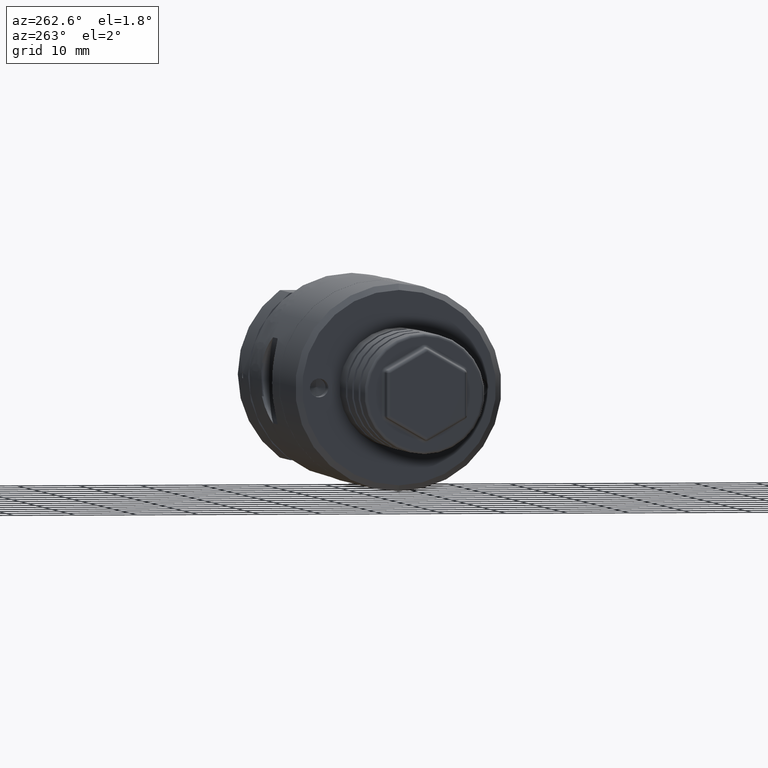
[diagram: clean part render]
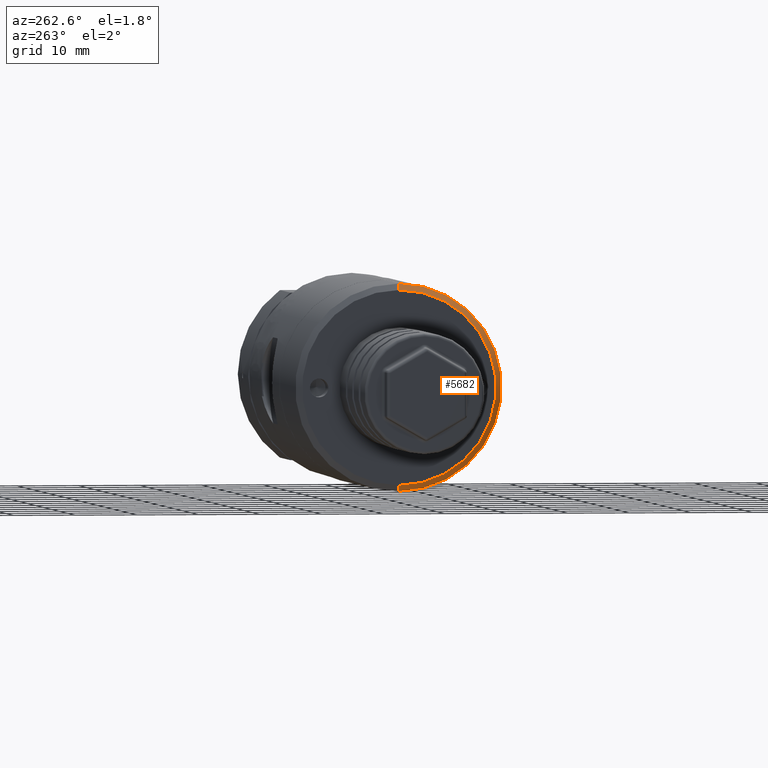
[diagram: same view with one face highlighted and labeled with its STEP entity id]
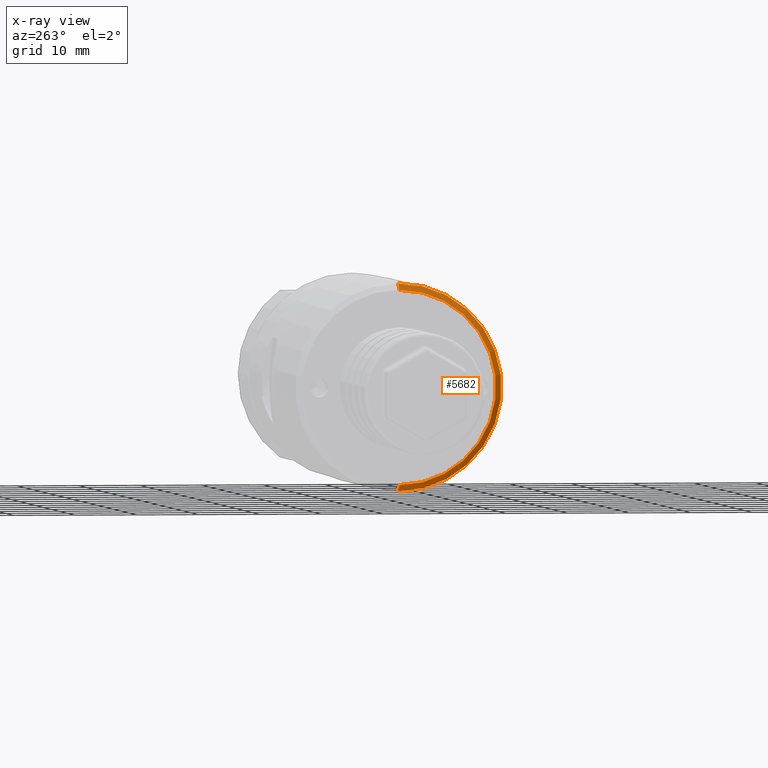
[diagram: x-ray of the same camera — body ghosted, the highlighted face saturated]
A machine part, auxiliary view. The second image highlights one B-rep face of the part: STEP entity #5682.
The next image is the same camera in x-ray: the body ghosted, the highlighted face saturated — about 0% of this face is hidden behind the body in this view.
In plain terms, the highlighted conical surface has half-angle 45 deg.
Its self-contained STEP definition (entity closure, byte-faithful):
#81 = CARTESIAN_POINT ( 'NONE',  ( -71.90000000000000600, 2.051283388571816900E-015, 16.75000000000000000 ) ) ;
#462 = CARTESIAN_POINT ( 'NONE',  ( -71.90000000000000600, 0.0000000000000000000, 0.0000000000000000000 ) ) ;
#465 = DIRECTION ( 'NONE',  ( 0.0000000000000000000, 0.0000000000000000000, 1.000000000000000000 ) ) ;
#1841 = DIRECTION ( 'NONE',  ( 0.0000000000000000000, 0.0000000000000000000, -1.000000000000000000 ) ) ;
#1908 = CIRCLE ( 'NONE', #3865, 16.75000000000000000 ) ;
#2098 = ORIENTED_EDGE ( 'NONE', *, *, #15212, .T. ) ;
#2987 = EDGE_CURVE ( 'NONE', #9351, #15056, #1908, .T. ) ;
#3081 = CARTESIAN_POINT ( 'NONE',  ( -71.90000000000000600, 2.051283388571816900E-015, 16.75000000000000000 ) ) ;
#3269 = DIRECTION ( 'NONE',  ( 1.000000000000000000, 0.0000000000000000000, 0.0000000000000000000 ) ) ;
#3453 = CARTESIAN_POINT ( 'NONE',  ( -71.90000000000000600, 0.0000000000000000000, 0.0000000000000000000 ) ) ;
#3865 = AXIS2_PLACEMENT_3D ( 'NONE', #3453, #9238, #465 ) ;
#4816 = ORIENTED_EDGE ( 'NONE', *, *, #2987, .F. ) ;
#5170 = CARTESIAN_POINT ( 'NONE',  ( -72.90000000000000600, 0.0000000000000000000, -15.75000000000000000 ) ) ;
#5682 = ADVANCED_FACE ( 'NONE', ( #10970 ), #9604, .T. ) ;
#6614 = VECTOR ( 'NONE', #7644, 999.9999999999998900 ) ;
#6795 = AXIS2_PLACEMENT_3D ( 'NONE', #462, #3269, #1841 ) ;
#7644 = DIRECTION ( 'NONE',  ( 0.7071067811865520100, 0.0000000000000000000, -0.7071067811865431300 ) ) ;
#8097 = VERTEX_POINT ( 'NONE', #5170 ) ;
#8947 = DIRECTION ( 'NONE',  ( 0.0000000000000000000, 0.0000000000000000000, 1.000000000000000000 ) ) ;
#9238 = DIRECTION ( 'NONE',  ( 1.000000000000000000, -0.0000000000000000000, -0.0000000000000000000 ) ) ;
#9351 = VERTEX_POINT ( 'NONE', #3081 ) ;
#9604 = CONICAL_SURFACE ( 'NONE', #6795, 16.75000000000000000, 0.7853981633974419500 ) ;
#9969 = ORIENTED_EDGE ( 'NONE', *, *, #13575, .F. ) ;
#10970 = FACE_OUTER_BOUND ( 'NONE', #14875, .T. ) ;
#11421 = CARTESIAN_POINT ( 'NONE',  ( -71.90000000000000600, 0.0000000000000000000, -16.75000000000000000 ) ) ;
#11635 = DIRECTION ( 'NONE',  ( 0.7071067811865520100, 8.659560562354878600E-017, 0.7071067811865431300 ) ) ;
#11864 = LINE ( 'NONE', #81, #13920 ) ;
#12033 = CARTESIAN_POINT ( 'NONE',  ( -72.90000000000000600, 0.0000000000000000000, 0.0000000000000000000 ) ) ;
#12118 = VERTEX_POINT ( 'NONE', #17607 ) ;
#12518 = LINE ( 'NONE', #17987, #6614 ) ;
#13575 = EDGE_CURVE ( 'NONE', #12118, #9351, #11864, .T. ) ;
#13920 = VECTOR ( 'NONE', #11635, 999.9999999999998900 ) ;
#14154 = EDGE_CURVE ( 'NONE', #8097, #12118, #16649, .T. ) ;
#14875 = EDGE_LOOP ( 'NONE', ( #9969, #17747, #2098, #4816 ) ) ;
#15056 = VERTEX_POINT ( 'NONE', #11421 ) ;
#15212 = EDGE_CURVE ( 'NONE', #8097, #15056, #12518, .T. ) ;
#16649 = CIRCLE ( 'NONE', #18164, 15.75000000000000000 ) ;
#17607 = CARTESIAN_POINT ( 'NONE',  ( -72.90000000000000600, 1.990051048614449300E-015, 15.75000000000000000 ) ) ;
#17747 = ORIENTED_EDGE ( 'NONE', *, *, #14154, .F. ) ;
#17823 = DIRECTION ( 'NONE',  ( -1.000000000000000000, 0.0000000000000000000, 0.0000000000000000000 ) ) ;
#17987 = CARTESIAN_POINT ( 'NONE',  ( -71.90000000000000600, 0.0000000000000000000, -16.75000000000000000 ) ) ;
#18164 = AXIS2_PLACEMENT_3D ( 'NONE', #12033, #17823, #8947 ) ;